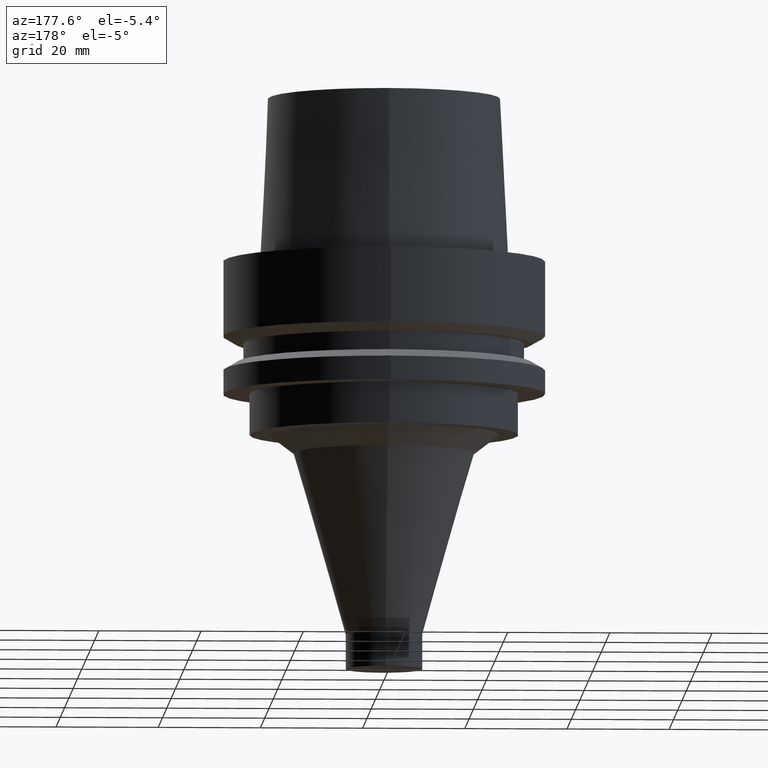
[diagram: clean part render]
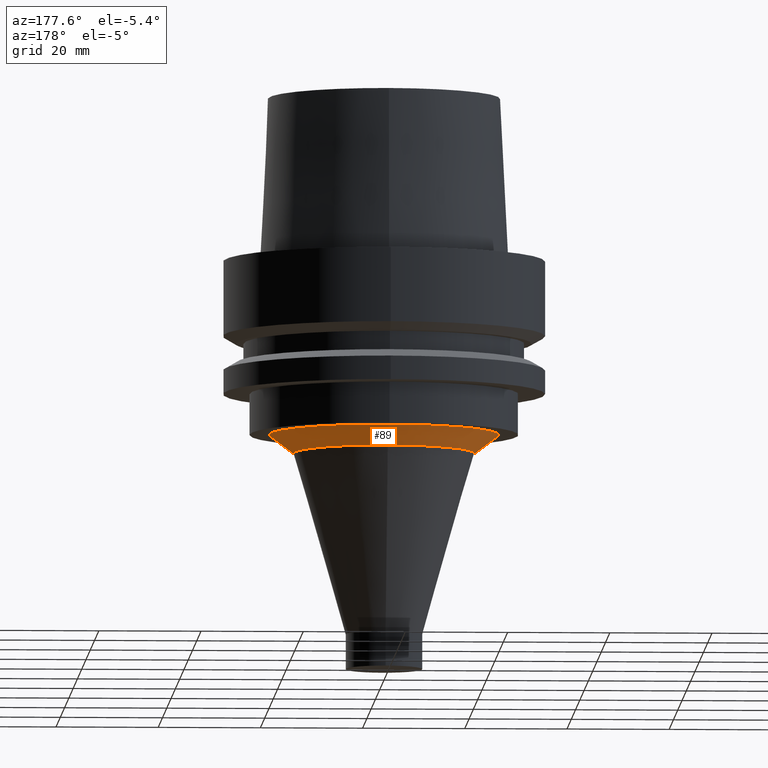
[diagram: same view with one face highlighted and labeled with its STEP entity id]
A machine part, auxiliary view. The second image highlights one B-rep face of the part: STEP entity #89.
In plain terms, the highlighted conical surface has half-angle 52.999 deg.
Its self-contained STEP definition (entity closure, byte-faithful):
#89=ADVANCED_FACE('',(#133,#134),#135,.T.);
#133=FACE_BOUND('',#182,.T.);
#134=FACE_BOUND('',#183,.T.);
#135=CONICAL_SURFACE('',#184,20.0968181953199,0.925004499727573);
#182=EDGE_LOOP('',(#259));
#183=EDGE_LOOP('',(#260));
#184=AXIS2_PLACEMENT_3D('',#261,#262,#263);
#259=ORIENTED_EDGE('',*,*,#288,.F.);
#260=ORIENTED_EDGE('',*,*,#287,.T.);
#261=CARTESIAN_POINT('',(2.19279149484006E-015,4.38558298968012E-015,-35.8110027538841));
#262=DIRECTION('',(-6.12323399573677E-017,-1.22464679914735E-016,1.0));
#263=DIRECTION('',(-1.23259516440783E-032,1.0,1.22464679914735E-016));
#287=EDGE_CURVE('',#316,#316,#317,.T.);
#288=EDGE_CURVE('',#318,#318,#319,.T.);
#316=VERTEX_POINT('',#348);
#317=CIRCLE('',#349,22.5);
#318=VERTEX_POINT('',#350);
#319=CIRCLE('',#351,17.6936363906399);
#348=CARTESIAN_POINT('',(2.0818995585505E-015,22.5,-34.0));
#349=AXIS2_PLACEMENT_3D('',#393,#394,#395);
#350=CARTESIAN_POINT('',(2.30368343112962E-015,17.6936363906399,-37.6220055077681));
#351=AXIS2_PLACEMENT_3D('',#396,#397,#398);
#393=CARTESIAN_POINT('',(2.0818995585505E-015,4.163799117101E-015,-34.0));
#394=DIRECTION('',(6.12323399573677E-017,1.22464679914735E-016,-1.0));
#395=DIRECTION('',(-1.23259516440783E-032,1.0,1.22464679914735E-016));
#396=CARTESIAN_POINT('',(2.30368343112962E-015,4.60736686225923E-015,-37.6220055077681));
#397=DIRECTION('',(6.12323399573677E-017,1.22464679914735E-016,-1.0));
#398=DIRECTION('',(-1.23259516440783E-032,1.0,1.22464679914735E-016));